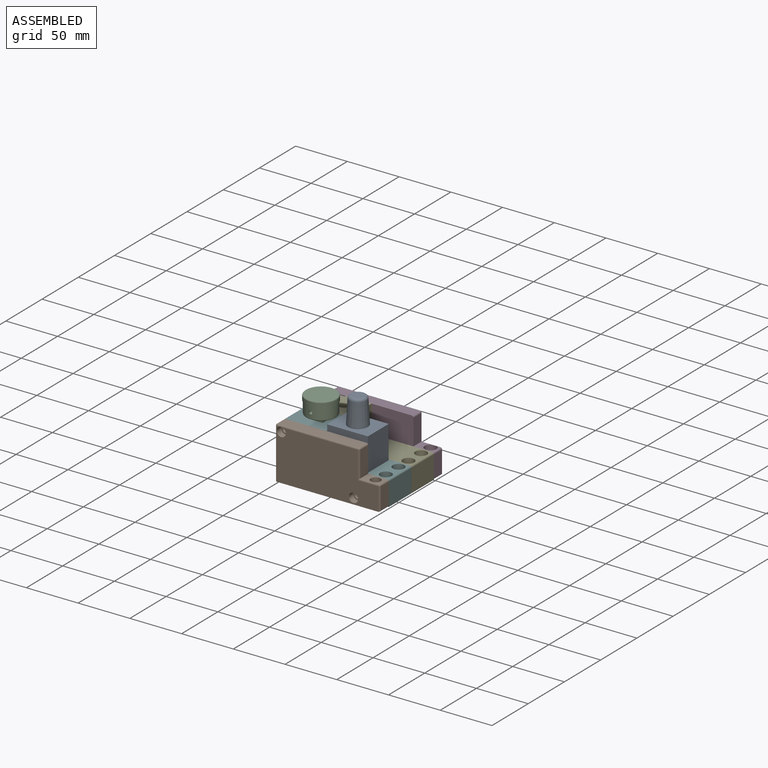
[diagram: assembled view]
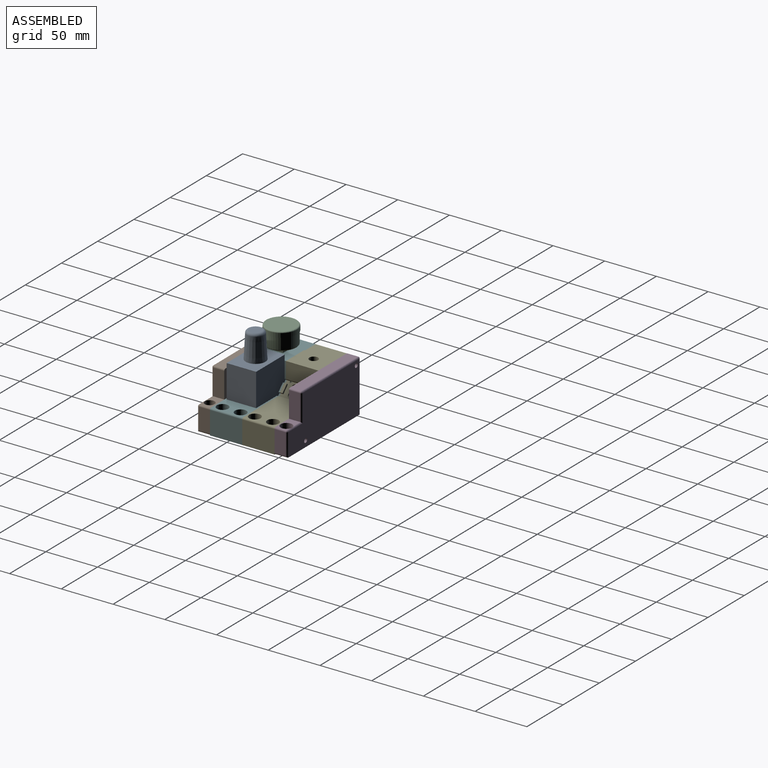
[diagram: assembled view, second angle]
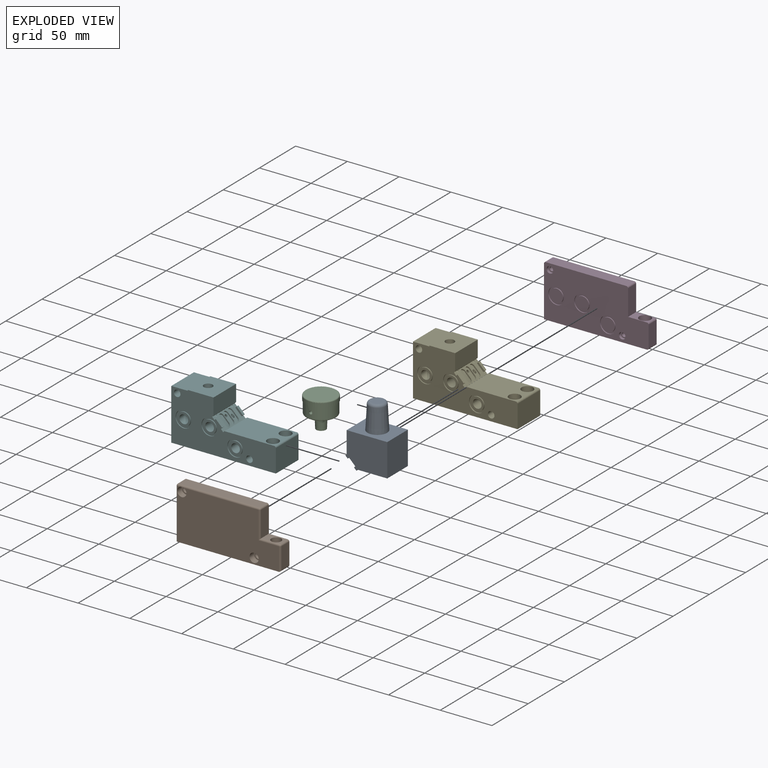
[diagram: exploded view]
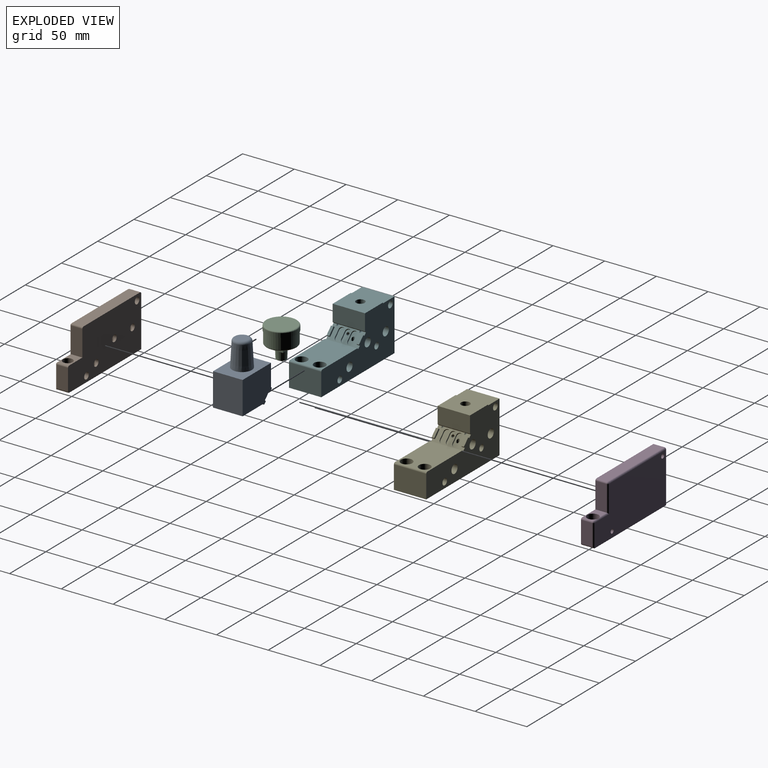
[diagram: exploded view, second angle]
ASSEMBLY  parts=6 mates=4
PART A: 16 faces, bbox 40.5x28.6x58.4 mm
  f0: plane 28.58x28.58mm, normal (0,0,-1), area 816.5mm2, adj f1,f10,f11,f12
  f1: plane 31.75x28.58mm, normal (1,0,0), area 907.3mm2, adj f0,f2,f11,f12
  f2: plane 39.24x28.58mm, normal (0,0,1), area 836.3mm2, adj f1,f3,f11,f12,f13
  f3: plane 28.58x21.08mm, normal (-1,0,0), area 602.4mm2, adj f2,f4,f11,f12
  f4: plane 28.58x1.26mm, normal (-0.71,0,0.71), area 50.8mm2, adj f3,f5,f11,f12
  f5: plane 28.58x2.28mm, normal (-0.71,0,-0.71), area 92.2mm2, adj f4,f6,f11,f12
  f6: plane 28.58x1.26mm, normal (0.71,0,-0.71), area 50.8mm2, adj f5,f7,f11,f12
  f7: plane 28.58x6.11mm, normal (-0.71,0,-0.71), area 246.8mm2, adj f6,f8,f11,f12
  f8: plane 28.58x1.26mm, normal (-0.71,0,0.71), area 50.8mm2, adj f7,f9,f11,f12
  f9: plane 28.58x2.28mm, normal (-0.71,0,-0.71), area 92.2mm2, adj f8,f10,f11,f12
  f10: plane 28.58x1.26mm, normal (0.71,0,-0.71), area 50.8mm2, adj f0,f9,f11,f12
  f11: plane 40.5x33.01mm, normal (0,1,0), area 1200.5mm2, adj f0,f1,f2,f3,f4,f5,f6,f7
  f12: plane 40.5x33.01mm, normal (0,-1,0), area 1200.5mm2, adj f0,f1,f2,f3,f4,f5,f6,f7
  f13: cone r=9.53mm half-angle=3deg, axis (0,0,-1), area 1290.8mm2, adj f2,f15
  f14: plane 11.57x11.57mm, normal (0,0,1), area 105.1mm2, adj f15
  f15: torus R=5.78mm, axis (0,0,1), area 178.6mm2, adj f13,f14
PART B: 39 faces, bbox 101.1x12.2x50.3 mm
  f0: plane 97.92x48.7mm, normal (0,-1,0), area 4118.2mm2, adj f5,f20,f23,f27,f30,f33,f34,f37
  f1: cylinder r=4.22mm len=27.94mm, axis (0,0,-1), area 705.6mm2, adj f5,f12,f17
  f2: cylinder r=4.22mm len=27.94mm, axis (0,0,-1), area 705.6mm2, adj f5,f13,f16
  f3: cylinder r=4.22mm len=16mm, axis (0,0,-1), area 389.3mm2, adj f5,f14,f15
  f4: plane 48.7x10.6mm, normal (-1,0,0), area 516.5mm2, adj f5,f11,f27,f28
  f5: plane 99.5x12.19mm, normal (0,0,-1), area 1024.6mm2, adj f0,f1,f2,f3,f4,f11,f24,f27
  f6: plane 20.57x10.6mm, normal (1,0,0), area 218.2mm2, adj f11,f35,f37,f38
  f7: plane 18.22x10.6mm, normal (0,0,1), area 122.5mm2, adj f8,f11,f26,f34,f35
  f8: plane 24.96x10.6mm, normal (1,0,0), area 264.6mm2, adj f7,f11,f31,f33
  f9: plane 78.11x10.6mm, normal (0,0,1), area 828.3mm2, adj f11,f28,f30,f31
  f10: plane 2.48x2.48mm, normal (0,-1,0), area 2.2mm2, adj f23,f27,f30
  f11: plane 101.09x50.29mm, normal (0,1,0), area 4397.7mm2, adj f4,f5,f6,f7,f8,f9,f15,f16
  f12: cone r=0mm half-angle=59deg, axis (0,0,-1), area 65.2mm2, adj f1
  f13: cone r=0mm half-angle=59deg, axis (0,0,-1), area 65.2mm2, adj f2
  f14: cone r=0mm half-angle=59deg, axis (0,0,-1), area 65.2mm2, adj f3
  f15: cylinder r=3.17mm len=6.35mm, axis (0,1,0), area 51.1mm2, adj f3,f11
  f16: cylinder r=3.17mm len=6.35mm, axis (0,1,0), area 51.1mm2, adj f2,f11
  f17: cylinder r=3.17mm len=6.35mm, axis (0,1,0), area 51.1mm2, adj f1,f11
  f18: cylinder r=3.17mm len=6.35mm, axis (0,-1,0), area 121.6mm2, adj f11,f19
  f19: plane 8.89x8.89mm, normal (0,-1,0), area 30.4mm2, adj f18,f20
  f20: cylinder r=4.45mm len=8.89mm, axis (0,-1,0), area 170.3mm2, adj f0,f19
  f21: cylinder r=3.17mm len=6.35mm, axis (0,-1,0), area 121.6mm2, adj f11,f22
  f22: plane 8.89x8.89mm, normal (0,-1,0), area 30.4mm2, adj f21,f23
  f23: cylinder r=4.45mm len=8.89mm, axis (0,-1,0), area 170.3mm2, adj f0,f10,f22,f27,f30
  f24: cylinder r=2.55mm len=11.05mm, axis (0,0,1), area 177.2mm2, adj f5,f25
  f25: plane 9.53x9.53mm, normal (0,0,1), area 50.8mm2, adj f24,f26
  f26: cylinder r=4.76mm len=12.7mm, axis (0,0,1), area 380mm2, adj f7,f25,f34
  f27: cylinder r=1.59mm len=48.7mm, axis (0,0,1), area 120.7mm2, adj f0,f4,f5,f10,f23,f29
  f28: cylinder r=1.59mm len=10.6mm, axis (0,1,0), area 26.4mm2, adj f4,f9,f11,f29
  f29: sphere r=1.59mm, area 4mm2, adj f27,f28,f30
  f30: cylinder r=1.59mm len=78.11mm, axis (1,0,0), area 194.1mm2, adj f0,f9,f10,f23,f29,f32
  f31: cylinder r=1.59mm len=10.6mm, axis (0,-1,0), area 26.4mm2, adj f8,f9,f11,f32
  f32: sphere r=1.59mm, area 4mm2, adj f30,f31,f33
  f33: cylinder r=1.59mm len=26.54mm, axis (0,0,-1), area 63.7mm2, adj f0,f8,f32,f34
  f34: cylinder r=1.59mm len=19.81mm, axis (1,0,0), area 46.4mm2, adj f0,f7,f26,f33,f36
  f35: cylinder r=1.59mm len=10.6mm, axis (0,1,0), area 26.4mm2, adj f6,f7,f11,f36
  f36: sphere r=1.59mm, area 4mm2, adj f34,f35,f37
  f37: cylinder r=1.59mm len=22.16mm, axis (0,0,-1), area 53.8mm2, adj f0,f6,f36,f38
  f38: cylinder r=1.59mm len=12.19mm, axis (0,1,0), area 29mm2, adj f5,f6,f11,f37
PART C: 19 faces, bbox 32.5x32.5x30 mm
  f0: cylinder r=1.5mm len=14.5mm, axis (0,1,0), area 136.7mm2, adj f4,f18
  f1: cone r=4.7mm half-angle=2.1deg, axis (0,0,1), area 244mm2, adj f6,f7,f8,f9,f17
  f2: torus R=14mm, axis (0,0,1), area 144.5mm2, adj f5,f12
  f3: torus R=13.5mm, axis (0,0,1), area 139.5mm2, adj f4,f10
  f4: cylinder r=14.5mm len=29mm, axis (0,0,1), area 995.1mm2, adj f0,f3,f11
  f5: cylinder r=15mm len=30mm, axis (0,0,1), area 377mm2, adj f2,f11
  f6: plane 5x5mm, normal (0,0,-1), area 5.4mm2, adj f1,f13,f14
  f7: plane 5x5mm, normal (0,0,-1), area 5.4mm2, adj f1,f13,f16
  f8: plane 5x5mm, normal (0,0,-1), area 5.4mm2, adj f1,f15,f16
  f9: plane 5x5mm, normal (0,0,-1), area 5.4mm2, adj f1,f14,f15
  f10: plane 27x27mm, normal (0,0,-1), area 472.6mm2, adj f3,f13,f14,f15,f16
  f11: plane 30x30mm, normal (0,0,-1), area 46.3mm2, adj f4,f5
  f12: plane 28x28mm, normal (0,0,1), area 615.8mm2, adj f2
  f13: plane 10x5mm, normal (1,0,0), area 50mm2, adj f6,f7,f10,f14,f16
  f14: plane 10x5mm, normal (0,-1,0), area 50mm2, adj f6,f9,f10,f13,f15
  f15: plane 10x5mm, normal (-1,0,0), area 50mm2, adj f8,f9,f10,f14,f16
  f16: plane 10x5mm, normal (0,1,0), area 50mm2, adj f7,f8,f10,f13,f15
  f17: plane 9.4x9.4mm, normal (0,0,-1), area 69.4mm2, adj f1
  f18: plane 3x3mm, normal (0,-1,0), area 7.1mm2, adj f0
PART D: 41 faces, bbox 101.1x12.2x50.3 mm
  f0: plane 48.7x10.6mm, normal (-1,0,0), area 516.5mm2, adj f1,f6,f29,f30
  f1: plane 99.5x12.19mm, normal (0,0,-1), area 1176.8mm2, adj f0,f6,f7,f26,f30,f40
  f2: plane 20.57x10.6mm, normal (1,0,0), area 218.2mm2, adj f6,f36,f39,f40
  f3: plane 18.22x10.6mm, normal (0,0,1), area 100.9mm2, adj f4,f6,f28,f36,f37
  f4: plane 24.96x10.6mm, normal (1,0,0), area 264.6mm2, adj f3,f6,f32,f35
  f5: plane 78.11x10.6mm, normal (0,0,1), area 828.3mm2, adj f6,f29,f32,f33
  f6: plane 101.09x50.29mm, normal (0,-1,0), area 3898.9mm2, adj f0,f1,f2,f3,f4,f5,f10,f13
  f7: plane 97.92x48.7mm, normal (0,1,0), area 4217.5mm2, adj f1,f8,f11,f30,f33,f35,f37,f39
  f8: cylinder r=2.02mm len=9.65mm, axis (0,-1,0), area 122.5mm2, adj f7,f9
  f9: plane 6.35x6.35mm, normal (0,-1,0), area 18.9mm2, adj f8,f10
  f10: cylinder r=3.17mm len=6.35mm, axis (0,-1,0), area 50.7mm2, adj f6,f9
  f11: cylinder r=2.02mm len=9.65mm, axis (0,-1,0), area 122.5mm2, adj f7,f12
  f12: plane 6.35x6.35mm, normal (0,-1,0), area 18.9mm2, adj f11,f13
  f13: cylinder r=3.17mm len=6.35mm, axis (0,-1,0), area 50.7mm2, adj f6,f12
  f14: cylinder r=6.35mm len=12.7mm, axis (0,-1,0), area 40.5mm2, adj f16,f17
  f15: cylinder r=7.94mm len=15.88mm, axis (0,-1,0), area 50.7mm2, adj f6,f16
  f16: plane 15.88x15.88mm, normal (0,-1,0), area 71.3mm2, adj f14,f15
  f17: plane 12.7x12.7mm, normal (0,-1,0), area 126.7mm2, adj f14
  f18: cylinder r=6.35mm len=12.7mm, axis (0,-1,0), area 40.5mm2, adj f20,f21
  f19: cylinder r=7.94mm len=15.88mm, axis (0,-1,0), area 50.7mm2, adj f6,f20
  f20: plane 15.88x15.88mm, normal (0,-1,0), area 71.3mm2, adj f18,f19
  f21: plane 12.7x12.7mm, normal (0,-1,0), area 126.7mm2, adj f18
  f22: cylinder r=6.35mm len=12.7mm, axis (0,-1,0), area 40.5mm2, adj f24,f25
  f23: cylinder r=7.94mm len=15.88mm, axis (0,-1,0), area 50.7mm2, adj f6,f24
  f24: plane 15.88x15.88mm, normal (0,-1,0), area 71.3mm2, adj f22,f23
  f25: plane 12.7x12.7mm, normal (0,-1,0), area 126.7mm2, adj f22
  f26: cylinder r=3.38mm len=11.05mm, axis (0,0,1), area 234.5mm2, adj f1,f27
  f27: plane 11.11x11.11mm, normal (0,0,1), area 61.1mm2, adj f26,f28
  f28: cylinder r=5.56mm len=12.7mm, axis (0,0,1), area 442mm2, adj f3,f27,f37
  f29: cylinder r=1.59mm len=10.6mm, axis (0,1,0), area 26.4mm2, adj f0,f5,f6,f31
  f30: cylinder r=1.59mm len=48.7mm, axis (0,0,-1), area 121.5mm2, adj f0,f1,f7,f31
  f31: sphere r=1.59mm, area 4mm2, adj f29,f30,f33
  f32: cylinder r=1.59mm len=10.6mm, axis (0,1,0), area 26.4mm2, adj f4,f5,f6,f34
  f33: cylinder r=1.59mm len=78.11mm, axis (-1,0,0), area 194.8mm2, adj f5,f7,f31,f34
  f34: sphere r=1.59mm, area 4mm2, adj f32,f33,f35
  f35: cylinder r=1.59mm len=26.54mm, axis (0,0,1), area 63.7mm2, adj f4,f7,f34,f37
  f36: cylinder r=1.59mm len=10.6mm, axis (0,-1,0), area 26.4mm2, adj f2,f3,f6,f38
  f37: cylinder r=1.59mm len=19.81mm, axis (-1,0,0), area 42mm2, adj f3,f7,f28,f35,f38
  f38: sphere r=1.59mm, area 4mm2, adj f36,f37,f39
  f39: cylinder r=1.59mm len=22.16mm, axis (0,0,1), area 53.8mm2, adj f2,f7,f38,f40
  f40: cylinder r=1.59mm len=12.19mm, axis (0,1,0), area 29mm2, adj f1,f2,f6,f39
PART E: 91 faces, bbox 101.2x31.4x50.4 mm
  f0: plane 31.24x24.89mm, normal (0,0,1), area 721.8mm2, adj f4,f10,f14,f17,f89
  f1: cylinder r=1.38mm len=18.66mm, axis (0,0,-1), area 141mm2, adj f32,f68,f80,f81
  f2: cylinder r=1.59mm len=3.43mm, axis (0,1,0), area 24.1mm2, adj f75,f79,f80
  f3: cylinder r=1.59mm len=3.18mm, axis (0,1,0), area 6.1mm2, adj f4,f79,f80
  f4: cylinder r=4.22mm len=38.1mm, axis (0,0,1), area 1001.3mm2, adj f0,f3,f74
  f5: cylinder r=4.22mm len=31.24mm, axis (0,-1,0), area 821.6mm2, adj f17,f56,f73
  f6: cylinder r=3.17mm len=12.19mm, axis (0,-1,0), area 168.7mm2, adj f61,f63,f70,f71,f72
  f7: cylinder r=4.22mm len=31.24mm, axis (0,-1,0), area 793.1mm2, adj f17,f60,f65
  f8: plane 31.35x10.78mm, normal (0.71,0,0.71), area 230.4mm2, adj f10,f17,f20,f21,f22,f23,f24,f25
  f9: plane 6.11x6.11mm, normal (0.71,0,0.71), area 21.9mm2, adj f10,f20,f21,f22
  f10: plane 101.09x50.29mm, normal (0,-1,0), area 2858.2mm2, adj f0,f8,f9,f11,f12,f14,f15,f16
  f11: plane 31.24x22.16mm, normal (1,0,0), area 692.4mm2, adj f10,f16,f17,f88
  f12: plane 48.07x31.24mm, normal (0,0,1), area 1307.8mm2, adj f10,f17,f23,f84,f87,f88
  f13: plane 6.11x6.11mm, normal (0.71,0,0.71), area 21.9mm2, adj f17,f24,f25,f26
  f14: plane 31.24x15.88mm, normal (1,0,0), area 496mm2, adj f0,f10,f17,f27
  f15: plane 49.5x31.24mm, normal (-1,0,0), area 1516.9mm2, adj f10,f16,f17,f77,f90
  f16: plane 101.09x31.24mm, normal (0,0,-1), area 2919.1mm2, adj f10,f11,f15,f17,f67,f69,f72,f82
  f17: plane 101.09x50.29mm, normal (0,1,0), area 3254.7mm2, adj f0,f5,f7,f8,f11,f12,f13,f14
  f18: cylinder r=3.17mm len=31.24mm, axis (0,-1,0), area 623.3mm2, adj f10,f17
  f19: cylinder r=3.17mm len=31.24mm, axis (0,-1,0), area 623.3mm2, adj f10,f17
  f20: plane 2.54x1.26mm, normal (-0.71,0,0.71), area 4.5mm2, adj f8,f9,f10,f21
  f21: plane 7.36x7.36mm, normal (0,1,0), area 15.4mm2, adj f8,f9,f20,f22
  f22: plane 2.54x1.26mm, normal (0.71,0,-0.71), area 4.5mm2, adj f8,f9,f10,f21
  f23: plane 31.24x1.26mm, normal (-0.71,0,0.71), area 55.5mm2, adj f8,f10,f12,f17
  f24: plane 2.54x1.26mm, normal (0.71,0,-0.71), area 4.5mm2, adj f8,f13,f17,f25
  f25: plane 7.36x7.36mm, normal (0,-1,0), area 15.4mm2, adj f8,f13,f24,f26
  f26: plane 2.54x1.26mm, normal (-0.71,0,0.71), area 4.5mm2, adj f8,f13,f17,f25
  f27: plane 31.24x1.26mm, normal (0.71,0,-0.71), area 50.9mm2, adj f8,f10,f14,f17,f45,f48
  f28: cylinder r=2.73mm len=5.46mm, axis (0.71,0,0.71), area 10.9mm2, adj f8,f29,f31,f32
  f29: plane 6.02x6.02mm, normal (0,1,0), area 9.2mm2, adj f8,f28,f30,f32
  f30: cylinder r=2.73mm len=5.46mm, axis (0.71,0,0.71), area 10.9mm2, adj f8,f29,f31,f32
  f31: plane 6.02x6.02mm, normal (0,-1,0), area 9.2mm2, adj f8,f28,f30,f32
  f32: plane 8.98x8.98mm, normal (0.71,0,0.71), area 54.4mm2, adj f1,f28,f29,f30,f31
  f33: plane 6.02x6.02mm, normal (0,1,0), area 9.2mm2, adj f8,f34,f36,f37
  f34: cylinder r=2.73mm len=5.46mm, axis (0.71,0,0.71), area 10.9mm2, adj f8,f33,f35,f37
  f35: plane 6.02x6.02mm, normal (0,-1,0), area 9.2mm2, adj f8,f34,f36,f37
  f36: cylinder r=2.73mm len=5.46mm, axis (0.71,0,0.71), area 10.9mm2, adj f8,f33,f35,f37
  f37: plane 8.98x8.98mm, normal (0.71,0,0.71), area 56.9mm2, adj f33,f34,f35,f36,f73
  f38: cylinder r=2.73mm len=5.46mm, axis (0.71,0,0.71), area 10.9mm2, adj f8,f39,f41,f42
  f39: plane 6.02x6.02mm, normal (0,1,0), area 9.2mm2, adj f8,f38,f40,f42
  f40: cylinder r=2.73mm len=5.46mm, axis (0.71,0,0.71), area 10.9mm2, adj f8,f39,f41,f42
  f41: plane 6.02x6.02mm, normal (0,-1,0), area 9.2mm2, adj f8,f38,f40,f42
  f42: plane 8.98x8.98mm, normal (0.71,0,0.71), area 63mm2, adj f38,f39,f40,f41
  f43: plane 1.68x0.32mm, normal (-1,0,0), area 0.4mm2, adj f8,f45
  f44: cone r=0mm half-angle=59deg, axis (1,0,0), area 5.7mm2, adj f45
  f45: cylinder r=1.25mm len=14.2mm, axis (1,0,0), area 107.6mm2, adj f8,f27,f43,f44
  f46: plane 1.68x0.32mm, normal (-1,0,0), area 0.4mm2, adj f8,f48
  f47: cone r=0mm half-angle=59deg, axis (1,0,0), area 5.7mm2, adj f48
  f48: cylinder r=1.25mm len=14.2mm, axis (1,0,0), area 107.6mm2, adj f8,f27,f46,f47
  f49: cylinder r=6.35mm len=12.7mm, axis (0,-1,0), area 40.5mm2, adj f51,f52
  f50: cylinder r=7.94mm len=15.88mm, axis (0,-1,0), area 50.7mm2, adj f10,f51
  f51: plane 15.88x15.88mm, normal (0,-1,0), area 71.3mm2, adj f49,f50
  f52: plane 12.7x12.7mm, normal (0,-1,0), area 70.8mm2, adj f49,f62
  f53: cylinder r=6.35mm len=12.7mm, axis (0,-1,0), area 40.5mm2, adj f55,f56
  f54: cylinder r=7.94mm len=15.88mm, axis (0,-1,0), area 50.7mm2, adj f10,f55
  f55: plane 15.88x15.88mm, normal (0,-1,0), area 71.3mm2, adj f53,f54
  f56: plane 12.7x12.7mm, normal (0,-1,0), area 70.8mm2, adj f5,f53
  f57: cylinder r=6.35mm len=12.7mm, axis (0,-1,0), area 40.5mm2, adj f59,f60
  f58: cylinder r=7.94mm len=15.88mm, axis (0,-1,0), area 50.7mm2, adj f10,f59
  f59: plane 15.88x15.88mm, normal (0,-1,0), area 71.3mm2, adj f57,f58
  f60: plane 12.7x12.7mm, normal (0,-1,0), area 70.8mm2, adj f7,f57
  f61: plane 8.43x8.43mm, normal (0,-1,0), area 24.2mm2, adj f6,f62
  f62: cylinder r=4.22mm len=9.53mm, axis (0,-1,0), area 252.3mm2, adj f52,f61
  f63: plane 8.43x8.43mm, normal (0,1,0), area 24.2mm2, adj f6,f64
  f64: cylinder r=4.22mm len=9.53mm, axis (0,1,0), area 252.3mm2, adj f17,f63
  f65: cylinder r=3.17mm len=11.32mm, axis (0,0,-1), area 211.1mm2, adj f7,f66
  f66: plane 8.43x8.43mm, normal (0,0,-1), area 24.2mm2, adj f65,f67
  f67: cylinder r=4.22mm len=9.53mm, axis (0,0,-1), area 252.3mm2, adj f16,f66
  f68: plane 8.43x8.43mm, normal (0,0,-1), area 49.8mm2, adj f1,f69
  f69: cylinder r=4.22mm len=9.53mm, axis (0,0,-1), area 252.3mm2, adj f16,f68
  f70: cone r=0mm half-angle=59deg, axis (0,0,-1), area 4.8mm2, adj f6,f72
  f71: cone r=0mm half-angle=59deg, axis (0,0,-1), area 4.8mm2, adj f6,f72
  f72: cylinder r=4.22mm len=11.68mm, axis (0,0,-1), area 274.9mm2, adj f6,f16,f70,f71
  f73: cylinder r=1.38mm len=4.22mm, axis (0.71,0,0.71), area 27.8mm2, adj f5,f37
  f74: cone r=0mm half-angle=59deg, axis (0,0,1), area 65.2mm2, adj f4
  f75: plane 6.15x6.15mm, normal (0,1,0), area 21.8mm2, adj f2,f76
  f76: cylinder r=3.07mm len=6.35mm, axis (0,1,0), area 122.6mm2, adj f17,f75
  f77: cylinder r=3.07mm len=6.35mm, axis (-1,0,0), area 122.6mm2, adj f15,f78
  f78: plane 6.15x6.15mm, normal (-1,0,0), area 21.8mm2, adj f77,f79
  f79: cylinder r=1.59mm len=18.42mm, axis (-1,0,0), area 173.6mm2, adj f2,f3,f78
  f80: cylinder r=1.59mm len=19.18mm, axis (-1,0,0), area 174.7mm2, adj f1,f2,f3,f81
  f81: cone r=0mm half-angle=59deg, axis (-1,0,0), area 1.6mm2, adj f1,f80
  f82: cylinder r=3.38mm len=11.05mm, axis (0,0,1), area 234.5mm2, adj f16,f83
  f83: plane 11.11x11.11mm, normal (0,0,1), area 61.1mm2, adj f82,f84
  f84: cylinder r=5.56mm len=12.7mm, axis (0,0,1), area 443.4mm2, adj f12,f83
  f85: cylinder r=3.38mm len=11.05mm, axis (0,0,1), area 234.5mm2, adj f16,f86
  f86: plane 11.11x11.11mm, normal (0,0,1), area 61.1mm2, adj f85,f87
  f87: cylinder r=5.56mm len=12.7mm, axis (0,0,1), area 443.4mm2, adj f12,f86
  f88: cylinder r=1.59mm len=31.24mm, axis (0,1,0), area 77.9mm2, adj f10,f11,f12,f17
  f89: plane 31.24x0.79mm, normal (-1,0,0), area 24.6mm2, adj f0,f10,f17,f90
  f90: plane 31.24x15.88mm, normal (0,0,1), area 496mm2, adj f10,f15,f17,f89
PART F: same geometry as E
PLACE A at identity
PLACE B t=(0,-21.72,0)mm
PLACE C t=(24.77,0,72.29)mm
PLACE D t=(0,52.96,0)mm
PLACE E t=(0,31.24,0)mm
PLACE F at identity fixed
MATE fastened C.f1 <-> F.f4  axis (0,0,-1) through (24.77,0,50.29)mm
MATE fastened E.f19 <-> F.f19  axis (0,-1,0) through (5.72,15.62,44.58)mm
MATE fastened D.f11 <-> E.f19  axis (0,-1,0) through (5.71,46.86,44.58)mm
MATE fastened B.f21 <-> F.f19  axis (0,1,0) through (5.72,-15.62,44.58)mm
